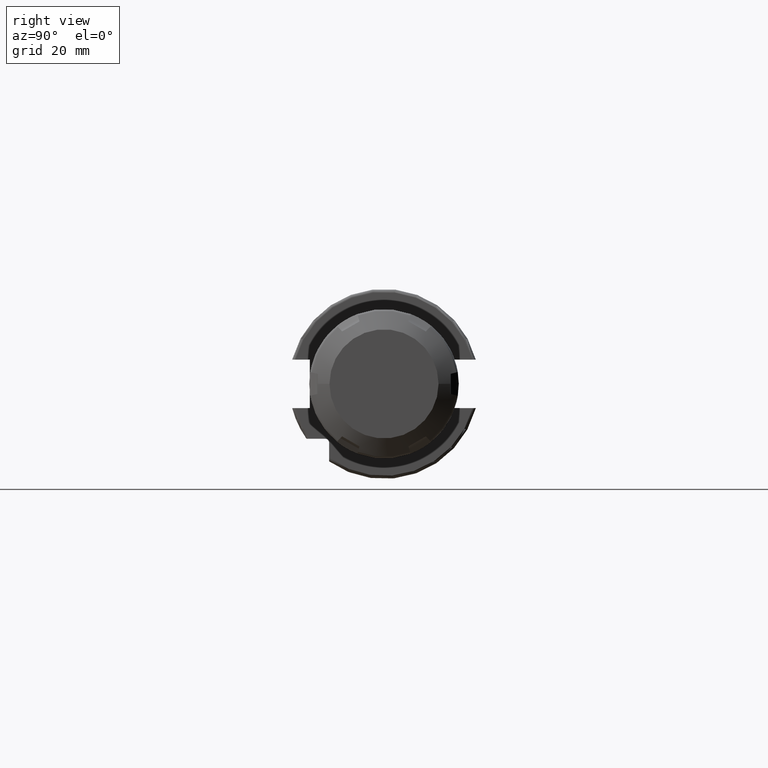
[diagram: clean part render]
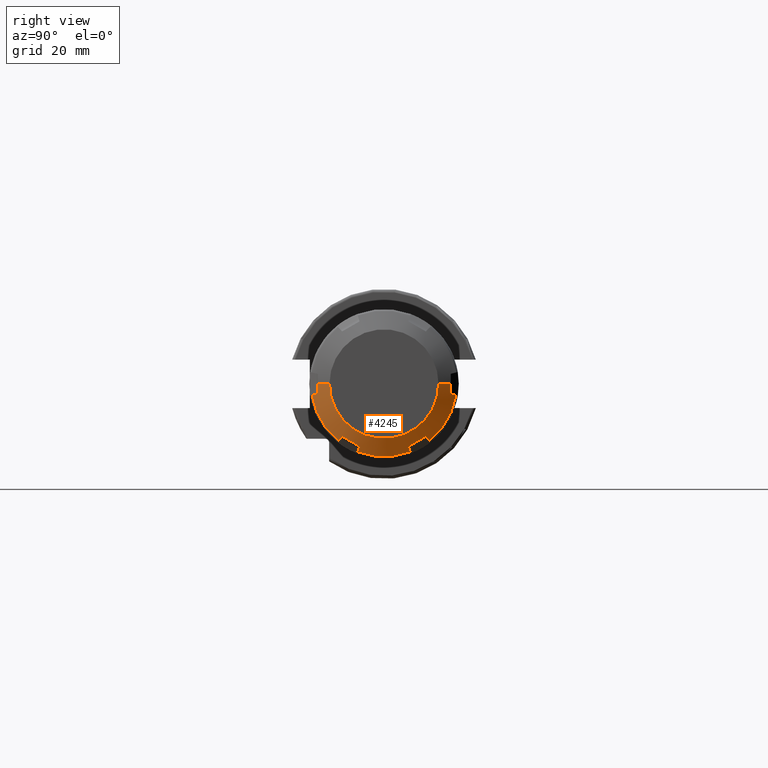
[diagram: same view with one face highlighted and labeled with its STEP entity id]
A machine part, right view. The second image highlights one B-rep face of the part: STEP entity #4245.
In plain terms, the highlighted conical surface has half-angle 60 deg.
Its self-contained STEP definition (entity closure, byte-faithful):
#3391=CARTESIAN_POINT('',(2.007435737753E1,1.400118510268E1,-1.755076396401E1));
#3392=CARTESIAN_POINT('',(1.989202963548E1,1.422154361045E1,-1.777895187872E1));
#3393=CARTESIAN_POINT('',(1.952459463873E1,1.466553630405E1,-1.823871977204E1));
#3394=CARTESIAN_POINT('',(1.915160861205E1,1.511608354504E1,-1.870527509788E1));
#3395=CARTESIAN_POINT('',(1.896372960121E1,1.534299650585E1,-1.894025034738E1));
#3397=CARTESIAN_POINT('',(2.007435737753E1,8.198814897322E0,-2.090076396401E1));
#3398=CARTESIAN_POINT('',(2.013850261850E1,8.843656557694E0,-2.052846445781E1));
#3399=CARTESIAN_POINT('',(2.022485531472E1,1.013317723897E1,-1.978395934535E1));
#3400=CARTESIAN_POINT('',(2.022485360844E1,1.206686210227E1,-1.866754586900E1));
#3401=CARTESIAN_POINT('',(2.013850094754E1,1.335636024026E1,-1.792305377191E1));
#3402=CARTESIAN_POINT('',(2.007435737753E1,1.400118510268E1,-1.755076396401E1));
#3404=CARTESIAN_POINT('',(1.896372960121E1,8.731239701949E0,-2.275754991793E1));
#3405=CARTESIAN_POINT('',(1.915154885340E1,8.641230285410E0,-2.244364977861E1));
#3406=CARTESIAN_POINT('',(1.952447514954E1,8.462483784300E0,-2.182028664885E1));
#3407=CARTESIAN_POINT('',(1.989196990744E1,8.286280817645E0,-2.120579387789E1));
#3408=CARTESIAN_POINT('',(2.007435737753E1,8.198814897322E0,-2.090076396401E1));
#3410=CARTESIAN_POINT('',(1.896372960121E1,0.E0,0.E0));
#3411=DIRECTION('',(-1.E0,0.E0,0.E0));
#3412=DIRECTION('',(0.E0,3.582047057210E-1,-9.336430735561E-1));
#3413=AXIS2_PLACEMENT_3D('',#3410,#3411,#3412);
#3415=CARTESIAN_POINT('',(2.007435737753E1,-8.198814897322E0,
-2.090076396401E1));
#3416=CARTESIAN_POINT('',(1.989202963548E1,-8.286252174404E0,
-2.120569398704E1));
#3417=CARTESIAN_POINT('',(1.952459463873E1,-8.462426503065E0,
-2.182008688545E1));
#3418=CARTESIAN_POINT('',(1.915160861205E1,-8.641201647020E0,
-2.244354990467E1));
#3419=CARTESIAN_POINT('',(1.896372960121E1,-8.731239701949E0,
-2.275754991793E1));
#3421=CARTESIAN_POINT('',(2.007435737753E1,-1.400118510268E1,
-1.755076396401E1));
#3422=CARTESIAN_POINT('',(2.013850261850E1,-1.335634344231E1,
-1.792306347021E1));
#3423=CARTESIAN_POINT('',(2.022485531472E1,-1.206682276103E1,
-1.866756858268E1));
#3424=CARTESIAN_POINT('',(2.022485360844E1,-1.013313789773E1,
-1.978398205903E1));
#3425=CARTESIAN_POINT('',(2.013850094754E1,-8.843639759743E0,
-2.052847415612E1));
#3426=CARTESIAN_POINT('',(2.007435737753E1,-8.198814897322E0,
-2.090076396401E1));
#3428=CARTESIAN_POINT('',(1.896372960121E1,-1.534299650585E1,
-1.894025034738E1));
#3429=CARTESIAN_POINT('',(1.915154885340E1,-1.511615571921E1,
-1.870534983642E1));
#3430=CARTESIAN_POINT('',(1.952447514954E1,-1.466568066362E1,
-1.823886926074E1));
#3431=CARTESIAN_POINT('',(1.989196990744E1,-1.422161579685E1,
-1.777902662992E1));
#3432=CARTESIAN_POINT('',(2.007435737753E1,-1.400118510268E1,
-1.755076396401E1));
#3434=CARTESIAN_POINT('',(1.896372960121E1,0.E0,0.E0));
#3435=DIRECTION('',(-1.E0,0.E0,0.E0));
#3436=DIRECTION('',(0.E0,-6.294562669065E-1,-7.770359116876E-1));
#3437=AXIS2_PLACEMENT_3D('',#3434,#3435,#3436);
#3439=CARTESIAN_POINT('',(2.007435737753E1,-2.22E1,-3.35E0));
#3440=CARTESIAN_POINT('',(1.989202963548E1,-2.250779578486E1,
-3.426742108322E0));
#3441=CARTESIAN_POINT('',(1.952459463873E1,-2.312796280711E1,
-3.581367113410E0));
#3442=CARTESIAN_POINT('',(1.915160861205E1,-2.375728519206E1,
-3.738274806794E0));
#3443=CARTESIAN_POINT('',(1.896372960121E1,-2.407423620780E1,
-3.817299570546E0));
#3445=CARTESIAN_POINT('',(2.021946643670E1,-2.22E1,-4.505137681520E-14));
#3446=CARTESIAN_POINT('',(2.021946643670E1,-2.22E1,-3.723412104007E-1));
#3447=CARTESIAN_POINT('',(2.020864224929E1,-2.22E1,-1.116942255784E0));
#3448=CARTESIAN_POINT('',(2.016008769471E1,-2.22E1,-2.233495806650E0));
#3449=CARTESIAN_POINT('',(2.010641792581E1,-2.22E1,-2.977840628173E0));
#3450=CARTESIAN_POINT('',(2.007435737753E1,-2.22E1,-3.35E0));
#3452=DIRECTION('',(-5.E-1,-8.660254037844E-1,0.E0));
#3453=VECTOR('',#3452,4.561067126598E0);
#3454=CARTESIAN_POINT('',(2.25E1,-1.825E1,0.E0));
#3455=LINE('',#3454,#3453);
#3456=CARTESIAN_POINT('',(2.25E1,0.E0,0.E0));
#3457=DIRECTION('',(-1.E0,0.E0,0.E0));
#3458=DIRECTION('',(0.E0,1.E0,0.E0));
#3459=AXIS2_PLACEMENT_3D('',#3456,#3457,#3458);
#3461=DIRECTION('',(-5.E-1,8.660254037844E-1,0.E0));
#3462=VECTOR('',#3461,4.561067126598E0);
#3463=CARTESIAN_POINT('',(2.25E1,1.825E1,0.E0));
#3464=LINE('',#3463,#3462);
#3465=CARTESIAN_POINT('',(2.007435737753E1,2.22E1,-3.35E0));
#3466=CARTESIAN_POINT('',(2.010642291935E1,2.22E1,-2.977782663007E0));
#3467=CARTESIAN_POINT('',(2.016009585532E1,2.22E1,-2.233360618265E0));
#3468=CARTESIAN_POINT('',(2.020864465134E1,2.22E1,-1.116836975823E0));
#3469=CARTESIAN_POINT('',(2.021946643670E1,2.22E1,-3.722962341462E-1));
#3470=CARTESIAN_POINT('',(2.021946643670E1,2.22E1,0.E0));
#3472=CARTESIAN_POINT('',(1.896372960121E1,2.407423620780E1,-3.817299570546E0));
#3473=CARTESIAN_POINT('',(1.915154885340E1,2.375738600462E1,-3.738299942188E0));
#3474=CARTESIAN_POINT('',(1.952447514954E1,2.312816444792E1,-3.581417388109E0));
#3475=CARTESIAN_POINT('',(1.989196990744E1,2.250789661449E1,-3.426767247974E0));
#3476=CARTESIAN_POINT('',(2.007435737753E1,2.22E1,-3.35E0));
#3478=CARTESIAN_POINT('',(1.896372960121E1,0.E0,0.E0));
#3479=DIRECTION('',(-1.E0,0.E0,0.E0));
#3480=DIRECTION('',(0.E0,9.876609726275E-1,-1.566071618686E-1));
#3481=AXIS2_PLACEMENT_3D('',#3478,#3479,#3480);
#3750=CARTESIAN_POINT('',(2.021946643670E1,-2.22E1,-4.505137681520E-14));
#3817=CARTESIAN_POINT('',(2.021946643670E1,2.22E1,0.E0));
#4087=CARTESIAN_POINT('',(2.25E1,1.825E1,0.E0));
#4088=CARTESIAN_POINT('',(2.25E1,-1.825E1,0.E0));
#4089=VERTEX_POINT('',#4087);
#4090=VERTEX_POINT('',#4088);
#4101=VERTEX_POINT('',#3817);
#4102=VERTEX_POINT('',#3465);
#4103=VERTEX_POINT('',#3472);
#4146=VERTEX_POINT('',#3750);
#4148=VERTEX_POINT('',#3439);
#4149=VERTEX_POINT('',#3443);
#4161=VERTEX_POINT('',#3415);
#4162=VERTEX_POINT('',#3419);
#4163=VERTEX_POINT('',#3421);
#4164=VERTEX_POINT('',#3428);
#4176=VERTEX_POINT('',#3391);
#4177=VERTEX_POINT('',#3395);
#4178=VERTEX_POINT('',#3397);
#4179=VERTEX_POINT('',#3404);
#4207=CARTESIAN_POINT('',(2.073186480061E1,0.E0,0.E0));
#4208=DIRECTION('',(-1.E0,0.E0,0.E0));
#4209=DIRECTION('',(0.E0,1.E0,0.E0));
#4210=AXIS2_PLACEMENT_3D('',#4207,#4208,#4209);
#4211=CONICAL_SURFACE('',#4210,2.13125E1,6.E1);
#4213=ORIENTED_EDGE('',*,*,#4212,.F.);
#4215=ORIENTED_EDGE('',*,*,#4214,.F.);
#4217=ORIENTED_EDGE('',*,*,#4216,.F.);
#4219=ORIENTED_EDGE('',*,*,#4218,.T.);
#4221=ORIENTED_EDGE('',*,*,#4220,.F.);
#4223=ORIENTED_EDGE('',*,*,#4222,.F.);
#4225=ORIENTED_EDGE('',*,*,#4224,.F.);
#4227=ORIENTED_EDGE('',*,*,#4226,.T.);
#4229=ORIENTED_EDGE('',*,*,#4228,.F.);
#4231=ORIENTED_EDGE('',*,*,#4230,.F.);
#4233=ORIENTED_EDGE('',*,*,#4232,.F.);
#4234=ORIENTED_EDGE('',*,*,#4200,.F.);
#4236=ORIENTED_EDGE('',*,*,#4235,.T.);
#4238=ORIENTED_EDGE('',*,*,#4237,.F.);
#4240=ORIENTED_EDGE('',*,*,#4239,.F.);
#4242=ORIENTED_EDGE('',*,*,#4241,.T.);
#4243=EDGE_LOOP('',(#4213,#4215,#4217,#4219,#4221,#4223,#4225,#4227,#4229,#4231,
#4233,#4234,#4236,#4238,#4240,#4242));
#4244=FACE_OUTER_BOUND('',#4243,.F.);
#4245=ADVANCED_FACE('',(#4244),#4211,.T.);
#3396=B_SPLINE_CURVE_WITH_KNOTS('',3,(#3391,#3392,#3393,#3394,#3395),
.UNSPECIFIED.,.F.,.F.,(4,1,4),(0.E0,5.E-1,1.E0),.UNSPECIFIED.);
#3403=B_SPLINE_CURVE_WITH_KNOTS('',3,(#3397,#3398,#3399,#3400,#3401,#3402),
.UNSPECIFIED.,.F.,.F.,(4,1,1,4),(0.E0,3.333333333333E-1,6.666666666667E-1,1.E0),
.UNSPECIFIED.);
#3409=B_SPLINE_CURVE_WITH_KNOTS('',3,(#3404,#3405,#3406,#3407,#3408),
.UNSPECIFIED.,.F.,.F.,(4,1,4),(0.E0,5.E-1,1.E0),.UNSPECIFIED.);
#3414=CIRCLE('',#3413,2.4375E1);
#3420=B_SPLINE_CURVE_WITH_KNOTS('',3,(#3415,#3416,#3417,#3418,#3419),
.UNSPECIFIED.,.F.,.F.,(4,1,4),(0.E0,5.E-1,1.E0),.UNSPECIFIED.);
#3427=B_SPLINE_CURVE_WITH_KNOTS('',3,(#3421,#3422,#3423,#3424,#3425,#3426),
.UNSPECIFIED.,.F.,.F.,(4,1,1,4),(0.E0,3.333333333333E-1,6.666666666667E-1,1.E0),
.UNSPECIFIED.);
#3433=B_SPLINE_CURVE_WITH_KNOTS('',3,(#3428,#3429,#3430,#3431,#3432),
.UNSPECIFIED.,.F.,.F.,(4,1,4),(0.E0,5.E-1,1.E0),.UNSPECIFIED.);
#3438=CIRCLE('',#3437,2.4375E1);
#3444=B_SPLINE_CURVE_WITH_KNOTS('',3,(#3439,#3440,#3441,#3442,#3443),
.UNSPECIFIED.,.F.,.F.,(4,1,4),(0.E0,5.E-1,1.E0),.UNSPECIFIED.);
#3451=B_SPLINE_CURVE_WITH_KNOTS('',3,(#3445,#3446,#3447,#3448,#3449,#3450),
.UNSPECIFIED.,.F.,.F.,(4,1,1,4),(0.E0,3.333333333333E-1,6.666666666667E-1,1.E0),
.UNSPECIFIED.);
#3460=CIRCLE('',#3459,1.825E1);
#3471=B_SPLINE_CURVE_WITH_KNOTS('',3,(#3465,#3466,#3467,#3468,#3469,#3470),
.UNSPECIFIED.,.F.,.F.,(4,1,1,4),(0.E0,3.333333333333E-1,6.666666666667E-1,1.E0),
.UNSPECIFIED.);
#3477=B_SPLINE_CURVE_WITH_KNOTS('',3,(#3472,#3473,#3474,#3475,#3476),
.UNSPECIFIED.,.F.,.F.,(4,1,4),(0.E0,5.E-1,1.E0),.UNSPECIFIED.);
#3482=CIRCLE('',#3481,2.4375E1);
#4200=EDGE_CURVE('',#4089,#4090,#3460,.T.);
#4212=EDGE_CURVE('',#4176,#4177,#3396,.T.);
#4214=EDGE_CURVE('',#4178,#4176,#3403,.T.);
#4216=EDGE_CURVE('',#4179,#4178,#3409,.T.);
#4218=EDGE_CURVE('',#4179,#4162,#3414,.T.);
#4220=EDGE_CURVE('',#4161,#4162,#3420,.T.);
#4222=EDGE_CURVE('',#4163,#4161,#3427,.T.);
#4224=EDGE_CURVE('',#4164,#4163,#3433,.T.);
#4226=EDGE_CURVE('',#4164,#4149,#3438,.T.);
#4228=EDGE_CURVE('',#4148,#4149,#3444,.T.);
#4230=EDGE_CURVE('',#4146,#4148,#3451,.T.);
#4232=EDGE_CURVE('',#4090,#4146,#3455,.T.);
#4235=EDGE_CURVE('',#4089,#4101,#3464,.T.);
#4237=EDGE_CURVE('',#4102,#4101,#3471,.T.);
#4239=EDGE_CURVE('',#4103,#4102,#3477,.T.);
#4241=EDGE_CURVE('',#4103,#4177,#3482,.T.);